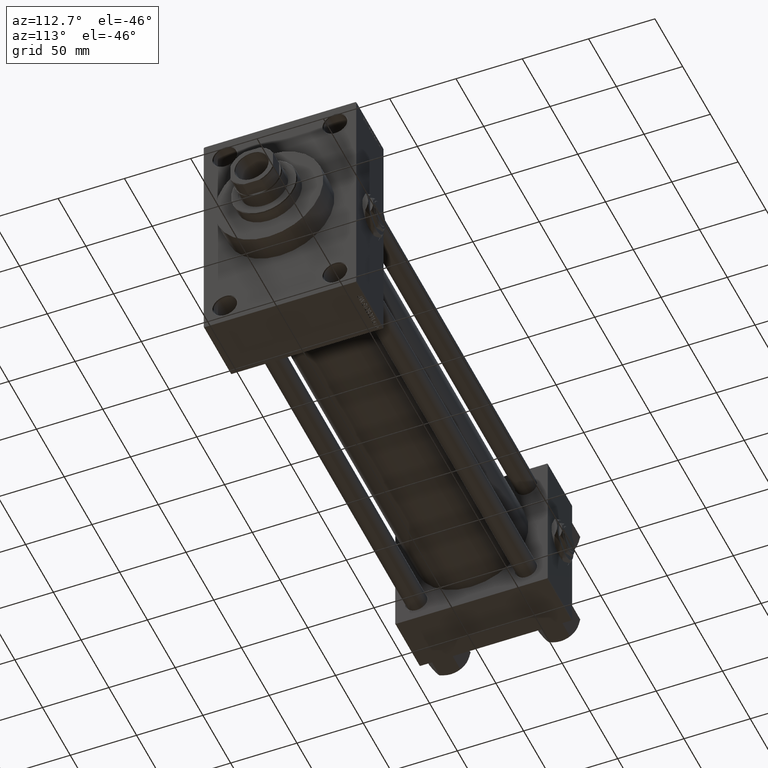
[diagram: clean part render]
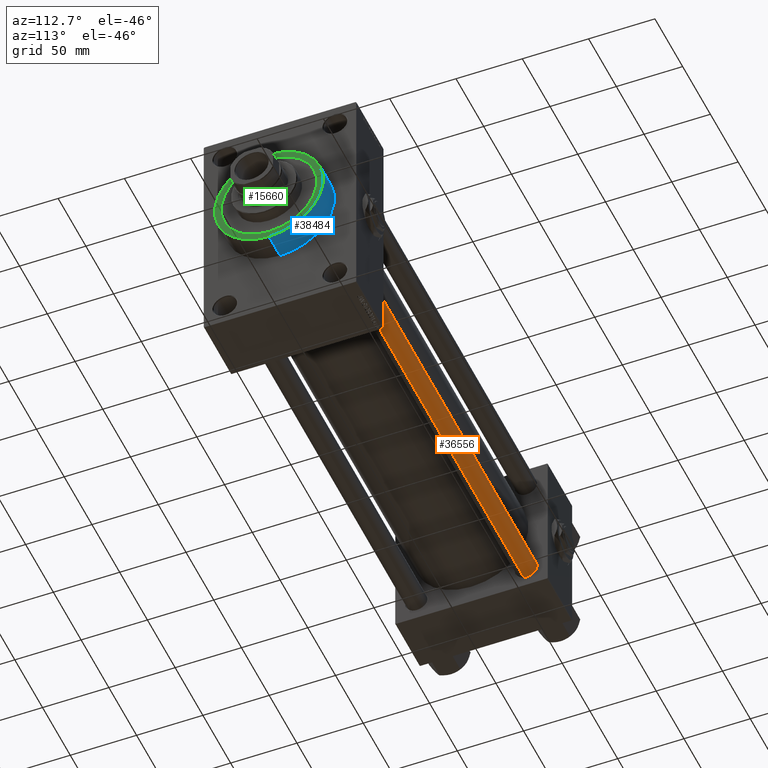
[diagram: same view with three faces highlighted in distinct colors, each labeled with its STEP entity id]
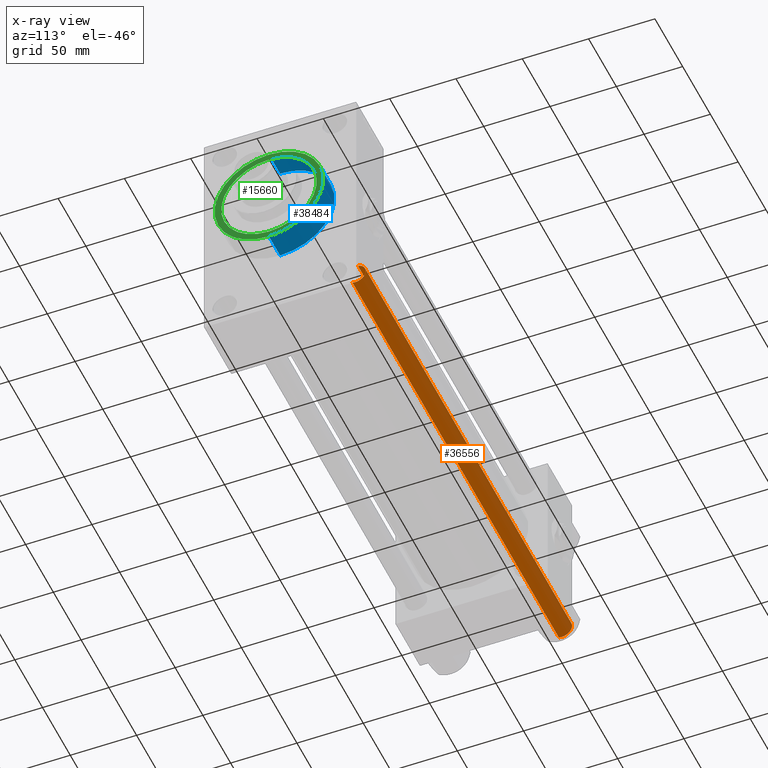
[diagram: x-ray of the same camera — body ghosted, the three highlighted faces saturated]
A machine part, auxiliary view with three faces highlighted in distinct colors.
The next image is the same camera in x-ray (body ghosted, the three faces saturated) — at least one of them is partly hidden behind the body in this view.
Their STEP definitions:

[orange] entity #36556 — the highlighted cylindrical surface (edge-blend (fillet) strip) has radius 8 mm, axis along (1, -0, 0).
#327 = DIRECTION ( 'NONE',  ( 1.000000000000000000, 0.000000000000000000, 0.000000000000000000 ) ) ;
#2599 = ORIENTED_EDGE ( 'NONE', *, *, #42548, .T. ) ;
#4365 = AXIS2_PLACEMENT_3D ( 'NONE', #24560, #5410, #20794 ) ;
#4605 = CARTESIAN_POINT ( 'NONE',  ( 0.000000000000000000, 0.000000000000000000, 372.5000000000000000 ) ) ;
#5410 = DIRECTION ( 'NONE',  ( -0.000000000000000000, -0.000000000000000000, 1.000000000000000000 ) ) ;
#5419 = VECTOR ( 'NONE', #42474, 1000.000000000000000 ) ;
#6218 = CARTESIAN_POINT ( 'NONE',  ( 8.000000000000000000, 9.797174393178825657E-16, 373.0000000000000000 ) ) ;
#6529 = DIRECTION ( 'NONE',  ( -1.000000000000000000, 0.000000000000000000, 0.000000000000000000 ) ) ;
#8733 = ORIENTED_EDGE ( 'NONE', *, *, #9603, .F. ) ;
#9603 = EDGE_CURVE ( 'NONE', #29708, #27768, #27133, .T. ) ;
#9824 = CARTESIAN_POINT ( 'NONE',  ( 0.000000000000000000, 0.000000000000000000, 373.0000000000000000 ) ) ;
#10068 = CYLINDRICAL_SURFACE ( 'NONE', #46923, 8.000000000000000000 ) ;
#11145 = CARTESIAN_POINT ( 'NONE',  ( -8.000000000000000000, 0.000000000000000000, 372.5000000000000000 ) ) ;
#13607 = FACE_OUTER_BOUND ( 'NONE', #46973, .T. ) ;
#14954 = CARTESIAN_POINT ( 'NONE',  ( -8.000000000000000000, 0.000000000000000000, 0.5000000000000559552 ) ) ;
#17445 = EDGE_CURVE ( 'NONE', #29708, #19828, #28894, .T. ) ;
#18220 = CARTESIAN_POINT ( 'NONE',  ( 8.000000000000000000, 9.797174393178825657E-16, 0.5000000000000559552 ) ) ;
#19828 = VERTEX_POINT ( 'NONE', #39811 ) ;
#20794 = DIRECTION ( 'NONE',  ( 1.000000000000000000, 0.000000000000000000, 0.000000000000000000 ) ) ;
#20857 = AXIS2_PLACEMENT_3D ( 'NONE', #4605, #30830, #327 ) ;
#21719 = VERTEX_POINT ( 'NONE', #18220 ) ;
#24560 = CARTESIAN_POINT ( 'NONE',  ( 0.000000000000000000, 0.000000000000000000, 0.5000000000000559552 ) ) ;
#26750 = ORIENTED_EDGE ( 'NONE', *, *, #17445, .T. ) ;
#27133 = LINE ( 'NONE', #46730, #5419 ) ;
#27768 = VERTEX_POINT ( 'NONE', #14954 ) ;
#28894 = CIRCLE ( 'NONE', #20857, 8.000000000000000000 ) ;
#29708 = VERTEX_POINT ( 'NONE', #11145 ) ;
#30830 = DIRECTION ( 'NONE',  ( 0.000000000000000000, 0.000000000000000000, -1.000000000000000000 ) ) ;
#32778 = ORIENTED_EDGE ( 'NONE', *, *, #41437, .T. ) ;
#34929 = CIRCLE ( 'NONE', #4365, 8.000000000000000000 ) ;
#35754 = VECTOR ( 'NONE', #48757, 1000.000000000000000 ) ;
#36556 = ADVANCED_FACE ( 'NONE', ( #13607 ), #10068, .T. ) ;
#39811 = CARTESIAN_POINT ( 'NONE',  ( 8.000000000000000000, 9.797174393178825657E-16, 372.5000000000000000 ) ) ;
#40715 = LINE ( 'NONE', #6218, #35754 ) ;
#41437 = EDGE_CURVE ( 'NONE', #21719, #27768, #34929, .T. ) ;
#42474 = DIRECTION ( 'NONE',  ( -0.000000000000000000, -0.000000000000000000, -1.000000000000000000 ) ) ;
#42548 = EDGE_CURVE ( 'NONE', #19828, #21719, #40715, .T. ) ;
#46730 = CARTESIAN_POINT ( 'NONE',  ( -8.000000000000000000, 0.000000000000000000, 373.0000000000000000 ) ) ;
#46923 = AXIS2_PLACEMENT_3D ( 'NONE', #9824, #48325, #6529 ) ;
#46973 = EDGE_LOOP ( 'NONE', ( #26750, #2599, #32778, #8733 ) ) ;
#48325 = DIRECTION ( 'NONE',  ( -0.000000000000000000, -0.000000000000000000, -1.000000000000000000 ) ) ;
#48757 = DIRECTION ( 'NONE',  ( -0.000000000000000000, -0.000000000000000000, -1.000000000000000000 ) ) ;

[blue] entity #38484 — the highlighted cylindrical surface (partial cylindrical patch) has radius 41 mm, axis along (-1, -0, -0).
#74 = DIRECTION ( 'NONE',  ( 1.000000000000000000, 0.000000000000000000, 0.000000000000000000 ) ) ;
#1263 = ORIENTED_EDGE ( 'NONE', *, *, #24773, .F. ) ;
#6499 = DIRECTION ( 'NONE',  ( -1.000000000000000000, -0.000000000000000000, -0.000000000000000000 ) ) ;
#7163 = EDGE_CURVE ( 'NONE', #25073, #36354, #34625, .T. ) ;
#9081 = CIRCLE ( 'NONE', #13101, 41.00000000000000000 ) ;
#10485 = CARTESIAN_POINT ( 'NONE',  ( 409.0000000000000000, 0.000000000000000000, 0.000000000000000000 ) ) ;
#11430 = CARTESIAN_POINT ( 'NONE',  ( 388.9999999999999432, 0.000000000000000000, 0.000000000000000000 ) ) ;
#12190 = CARTESIAN_POINT ( 'NONE',  ( 409.0000000000000000, 5.021051876504148963E-15, -41.00000000000000000 ) ) ;
#13101 = AXIS2_PLACEMENT_3D ( 'NONE', #14138, #36133, #31860 ) ;
#13495 = ORIENTED_EDGE ( 'NONE', *, *, #7163, .T. ) ;
#14138 = CARTESIAN_POINT ( 'NONE',  ( 409.0000000000000000, 0.000000000000000000, 0.000000000000000000 ) ) ;
#14267 = FACE_OUTER_BOUND ( 'NONE', #45645, .T. ) ;
#15650 = VERTEX_POINT ( 'NONE', #46884 ) ;
#16375 = CARTESIAN_POINT ( 'NONE',  ( 409.0000000000000000, 5.021051876504148963E-15, -41.00000000000000000 ) ) ;
#19253 = DIRECTION ( 'NONE',  ( 0.000000000000000000, 0.000000000000000000, -1.000000000000000000 ) ) ;
#20456 = ORIENTED_EDGE ( 'NONE', *, *, #43689, .F. ) ;
#23040 = CARTESIAN_POINT ( 'NONE',  ( 388.9999999999999432, 0.000000000000000000, 41.00000000000000000 ) ) ;
#23542 = DIRECTION ( 'NONE',  ( -1.000000000000000000, -0.000000000000000000, -0.000000000000000000 ) ) ;
#24773 = EDGE_CURVE ( 'NONE', #25073, #15650, #9081, .T. ) ;
#25073 = VERTEX_POINT ( 'NONE', #16375 ) ;
#28041 = CARTESIAN_POINT ( 'NONE',  ( 388.9999999999999432, 5.021051876504148963E-15, -41.00000000000000000 ) ) ;
#29632 = CYLINDRICAL_SURFACE ( 'NONE', #36551, 41.00000000000000000 ) ;
#30209 = VERTEX_POINT ( 'NONE', #23040 ) ;
#31860 = DIRECTION ( 'NONE',  ( 0.000000000000000000, 0.000000000000000000, -1.000000000000000000 ) ) ;
#32241 = EDGE_CURVE ( 'NONE', #36354, #30209, #40367, .T. ) ;
#33451 = CARTESIAN_POINT ( 'NONE',  ( 409.0000000000000000, 0.000000000000000000, 41.00000000000000000 ) ) ;
#33900 = DIRECTION ( 'NONE',  ( -1.000000000000000000, -0.000000000000000000, -0.000000000000000000 ) ) ;
#34625 = LINE ( 'NONE', #12190, #35066 ) ;
#34648 = DIRECTION ( 'NONE',  ( 0.000000000000000000, 0.000000000000000000, 1.000000000000000000 ) ) ;
#35066 = VECTOR ( 'NONE', #23542, 1000.000000000000000 ) ;
#36133 = DIRECTION ( 'NONE',  ( 1.000000000000000000, 0.000000000000000000, 0.000000000000000000 ) ) ;
#36354 = VERTEX_POINT ( 'NONE', #28041 ) ;
#36551 = AXIS2_PLACEMENT_3D ( 'NONE', #10485, #33900, #34648 ) ;
#38484 = ADVANCED_FACE ( 'NONE', ( #14267 ), #29632, .T. ) ;
#40367 = CIRCLE ( 'NONE', #42760, 41.00000000000000000 ) ;
#40544 = ORIENTED_EDGE ( 'NONE', *, *, #32241, .T. ) ;
#42760 = AXIS2_PLACEMENT_3D ( 'NONE', #11430, #74, #19253 ) ;
#43689 = EDGE_CURVE ( 'NONE', #15650, #30209, #47807, .T. ) ;
#45645 = EDGE_LOOP ( 'NONE', ( #1263, #13495, #40544, #20456 ) ) ;
#46235 = VECTOR ( 'NONE', #6499, 1000.000000000000000 ) ;
#46884 = CARTESIAN_POINT ( 'NONE',  ( 409.0000000000000000, 0.000000000000000000, 41.00000000000000000 ) ) ;
#47807 = LINE ( 'NONE', #33451, #46235 ) ;

[green] entity #15660 — the highlighted planar face has unit normal (1, 0, 0).
#42 = DIRECTION ( 'NONE',  ( 1.000000000000000000, 0.000000000000000000, 0.000000000000000000 ) ) ;
#379 = CIRCLE ( 'NONE', #5205, 41.00000000000000000 ) ;
#1377 = CARTESIAN_POINT ( 'NONE',  ( 409.0000000000000000, 4.408728476930470856E-15, 36.00000000000000000 ) ) ;
#2312 = AXIS2_PLACEMENT_3D ( 'NONE', #19219, #42, #38577 ) ;
#2596 = EDGE_LOOP ( 'NONE', ( #31959, #47497 ) ) ;
#4329 = VERTEX_POINT ( 'NONE', #22652 ) ;
#5205 = AXIS2_PLACEMENT_3D ( 'NONE', #46010, #7253, #11037 ) ;
#5842 = FACE_BOUND ( 'NONE', #2596, .T. ) ;
#7253 = DIRECTION ( 'NONE',  ( 1.000000000000000000, 0.000000000000000000, 0.000000000000000000 ) ) ;
#9081 = CIRCLE ( 'NONE', #13101, 41.00000000000000000 ) ;
#9134 = CARTESIAN_POINT ( 'NONE',  ( 409.0000000000000000, 0.000000000000000000, 0.000000000000000000 ) ) ;
#9602 = DIRECTION ( 'NONE',  ( 0.000000000000000000, 0.000000000000000000, -1.000000000000000000 ) ) ;
#9720 = AXIS2_PLACEMENT_3D ( 'NONE', #36035, #47853, #9602 ) ;
#11037 = DIRECTION ( 'NONE',  ( 0.000000000000000000, 0.000000000000000000, -1.000000000000000000 ) ) ;
#12654 = DIRECTION ( 'NONE',  ( 1.000000000000000000, 0.000000000000000000, 0.000000000000000000 ) ) ;
#12872 = EDGE_CURVE ( 'NONE', #24809, #4329, #35269, .T. ) ;
#13101 = AXIS2_PLACEMENT_3D ( 'NONE', #14138, #36133, #31860 ) ;
#14138 = CARTESIAN_POINT ( 'NONE',  ( 409.0000000000000000, 0.000000000000000000, 0.000000000000000000 ) ) ;
#15650 = VERTEX_POINT ( 'NONE', #46884 ) ;
#15660 = ADVANCED_FACE ( 'NONE', ( #5842, #16692 ), #43612, .T. ) ;
#16375 = CARTESIAN_POINT ( 'NONE',  ( 409.0000000000000000, 5.021051876504148963E-15, -41.00000000000000000 ) ) ;
#16692 = FACE_OUTER_BOUND ( 'NONE', #41384, .T. ) ;
#19219 = CARTESIAN_POINT ( 'NONE',  ( 409.0000000000000000, 0.000000000000000000, 0.000000000000000000 ) ) ;
#20977 = DIRECTION ( 'NONE',  ( 0.000000000000000000, 0.000000000000000000, -1.000000000000000000 ) ) ;
#21055 = EDGE_CURVE ( 'NONE', #4329, #24809, #21801, .T. ) ;
#21801 = CIRCLE ( 'NONE', #9720, 36.00000000000000000 ) ;
#22652 = CARTESIAN_POINT ( 'NONE',  ( 409.0000000000000000, 0.000000000000000000, -36.00000000000000000 ) ) ;
#24773 = EDGE_CURVE ( 'NONE', #25073, #15650, #9081, .T. ) ;
#24809 = VERTEX_POINT ( 'NONE', #1377 ) ;
#25073 = VERTEX_POINT ( 'NONE', #16375 ) ;
#27645 = ORIENTED_EDGE ( 'NONE', *, *, #24773, .T. ) ;
#31860 = DIRECTION ( 'NONE',  ( 0.000000000000000000, 0.000000000000000000, -1.000000000000000000 ) ) ;
#31959 = ORIENTED_EDGE ( 'NONE', *, *, #21055, .F. ) ;
#35269 = CIRCLE ( 'NONE', #2312, 36.00000000000000000 ) ;
#36035 = CARTESIAN_POINT ( 'NONE',  ( 409.0000000000000000, 0.000000000000000000, 0.000000000000000000 ) ) ;
#36133 = DIRECTION ( 'NONE',  ( 1.000000000000000000, 0.000000000000000000, 0.000000000000000000 ) ) ;
#38577 = DIRECTION ( 'NONE',  ( 0.000000000000000000, 0.000000000000000000, -1.000000000000000000 ) ) ;
#39191 = ORIENTED_EDGE ( 'NONE', *, *, #40334, .T. ) ;
#40334 = EDGE_CURVE ( 'NONE', #15650, #25073, #379, .T. ) ;
#41384 = EDGE_LOOP ( 'NONE', ( #39191, #27645 ) ) ;
#43612 = PLANE ( 'NONE',  #48924 ) ;
#46010 = CARTESIAN_POINT ( 'NONE',  ( 409.0000000000000000, 0.000000000000000000, 0.000000000000000000 ) ) ;
#46884 = CARTESIAN_POINT ( 'NONE',  ( 409.0000000000000000, 0.000000000000000000, 41.00000000000000000 ) ) ;
#47497 = ORIENTED_EDGE ( 'NONE', *, *, #12872, .F. ) ;
#47853 = DIRECTION ( 'NONE',  ( 1.000000000000000000, 0.000000000000000000, 0.000000000000000000 ) ) ;
#48924 = AXIS2_PLACEMENT_3D ( 'NONE', #9134, #12654, #20977 ) ;